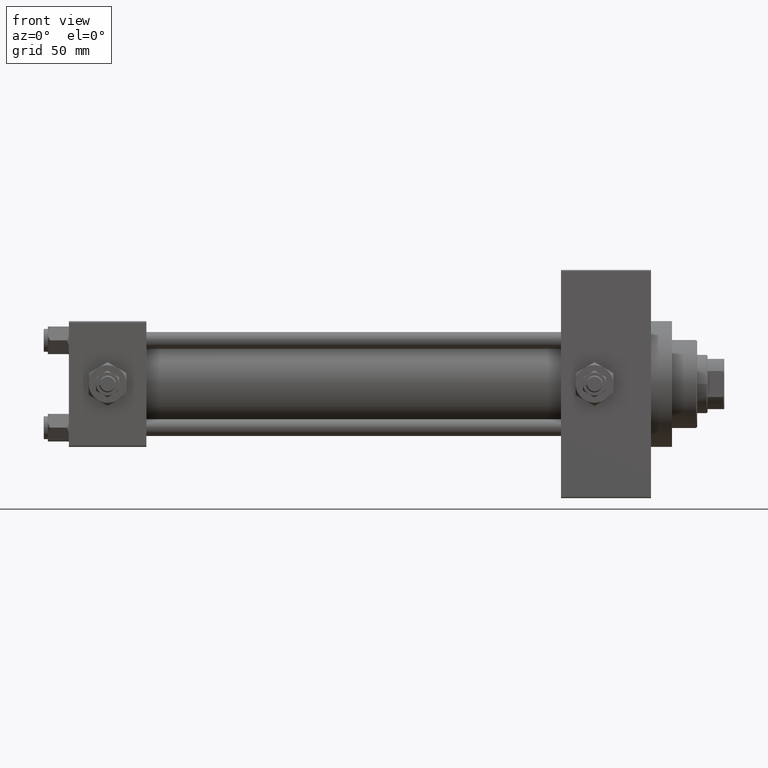
[diagram: clean part render]
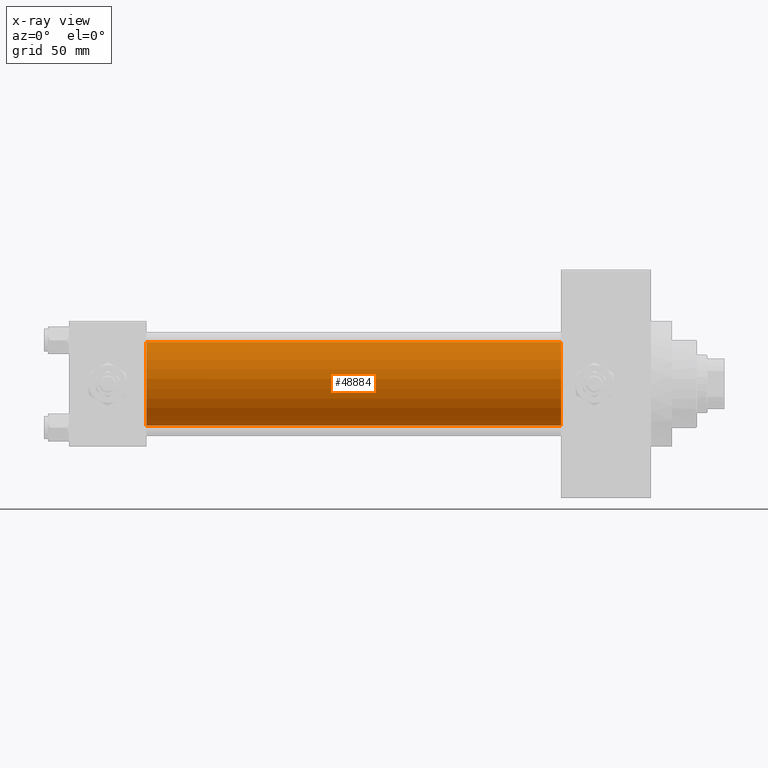
[diagram: x-ray — body ghosted, one internal face saturated and labeled with its STEP entity id]
A machine part, front view, then the same camera in x-ray: the body is ghosted and one INTERNAL B-rep face — a face not visible from any outside direction — is saturated and labeled: STEP entity #48884.
In plain terms, the highlighted cylindrical surface (partial cylindrical patch) has radius 20 mm, axis along (-1, -0, -0).
Its self-contained STEP definition (entity closure, byte-faithful):
#675 = CIRCLE ( 'NONE', #22269, 20.00000000000000000 ) ;
#2537 = DIRECTION ( 'NONE',  ( 0.000000000000000000, 0.000000000000000000, -1.000000000000000000 ) ) ;
#3062 = DIRECTION ( 'NONE',  ( -1.000000000000000000, -0.000000000000000000, -0.000000000000000000 ) ) ;
#3267 = LINE ( 'NONE', #41103, #10794 ) ;
#3742 = AXIS2_PLACEMENT_3D ( 'NONE', #41651, #3062, #21862 ) ;
#3817 = CYLINDRICAL_SURFACE ( 'NONE', #3742, 20.00000000000000000 ) ;
#5565 = EDGE_CURVE ( 'NONE', #43017, #9761, #3267, .T. ) ;
#5876 = EDGE_CURVE ( 'NONE', #11924, #39737, #17758, .T. ) ;
#9024 = EDGE_CURVE ( 'NONE', #39737, #9761, #38951, .T. ) ;
#9761 = VERTEX_POINT ( 'NONE', #43752 ) ;
#10794 = VECTOR ( 'NONE', #22066, 1000.000000000000000 ) ;
#11924 = VERTEX_POINT ( 'NONE', #30542 ) ;
#12668 = EDGE_CURVE ( 'NONE', #11924, #43017, #675, .T. ) ;
#14346 = FACE_OUTER_BOUND ( 'NONE', #25083, .T. ) ;
#17758 = LINE ( 'NONE', #30029, #42816 ) ;
#17823 = DIRECTION ( 'NONE',  ( 1.000000000000000000, 0.000000000000000000, 0.000000000000000000 ) ) ;
#19345 = ORIENTED_EDGE ( 'NONE', *, *, #9024, .F. ) ;
#21862 = DIRECTION ( 'NONE',  ( 0.000000000000000000, 0.000000000000000000, 1.000000000000000000 ) ) ;
#22066 = DIRECTION ( 'NONE',  ( -1.000000000000000000, -0.000000000000000000, -0.000000000000000000 ) ) ;
#22269 = AXIS2_PLACEMENT_3D ( 'NONE', #48167, #17823, #2537 ) ;
#23763 = AXIS2_PLACEMENT_3D ( 'NONE', #41961, #42223, #35184 ) ;
#25083 = EDGE_LOOP ( 'NONE', ( #37206, #43684, #19345, #42155 ) ) ;
#26832 = CARTESIAN_POINT ( 'NONE',  ( 37.00000000000000000, -2.602085213965210642E-15, 20.00000000000000000 ) ) ;
#30029 = CARTESIAN_POINT ( 'NONE',  ( 235.0000000000000284, -2.602085213965210642E-15, 20.00000000000000000 ) ) ;
#30542 = CARTESIAN_POINT ( 'NONE',  ( 235.0000000000000284, -2.602085213965210642E-15, 20.00000000000000000 ) ) ;
#33043 = DIRECTION ( 'NONE',  ( -1.000000000000000000, -0.000000000000000000, -0.000000000000000000 ) ) ;
#35184 = DIRECTION ( 'NONE',  ( 0.000000000000000000, 0.000000000000000000, -1.000000000000000000 ) ) ;
#37206 = ORIENTED_EDGE ( 'NONE', *, *, #12668, .T. ) ;
#38951 = CIRCLE ( 'NONE', #23763, 20.00000000000000000 ) ;
#39737 = VERTEX_POINT ( 'NONE', #26832 ) ;
#39884 = CARTESIAN_POINT ( 'NONE',  ( 235.0000000000000284, -1.527916156705042519E-16, -20.00000000000000000 ) ) ;
#41103 = CARTESIAN_POINT ( 'NONE',  ( 235.0000000000000284, -1.527916156705042519E-16, -20.00000000000000000 ) ) ;
#41651 = CARTESIAN_POINT ( 'NONE',  ( 235.0000000000000284, -2.602085213965210642E-15, 0.000000000000000000 ) ) ;
#41961 = CARTESIAN_POINT ( 'NONE',  ( 37.00000000000000000, -2.602085213965210642E-15, 0.000000000000000000 ) ) ;
#42155 = ORIENTED_EDGE ( 'NONE', *, *, #5876, .F. ) ;
#42223 = DIRECTION ( 'NONE',  ( 1.000000000000000000, 0.000000000000000000, 0.000000000000000000 ) ) ;
#42816 = VECTOR ( 'NONE', #33043, 1000.000000000000000 ) ;
#43017 = VERTEX_POINT ( 'NONE', #39884 ) ;
#43684 = ORIENTED_EDGE ( 'NONE', *, *, #5565, .T. ) ;
#43752 = CARTESIAN_POINT ( 'NONE',  ( 37.00000000000000000, -1.527916156705042519E-16, -20.00000000000000000 ) ) ;
#48167 = CARTESIAN_POINT ( 'NONE',  ( 235.0000000000000284, -2.602085213965210642E-15, 0.000000000000000000 ) ) ;
#48884 = ADVANCED_FACE ( 'NONE', ( #14346 ), #3817, .F. ) ;